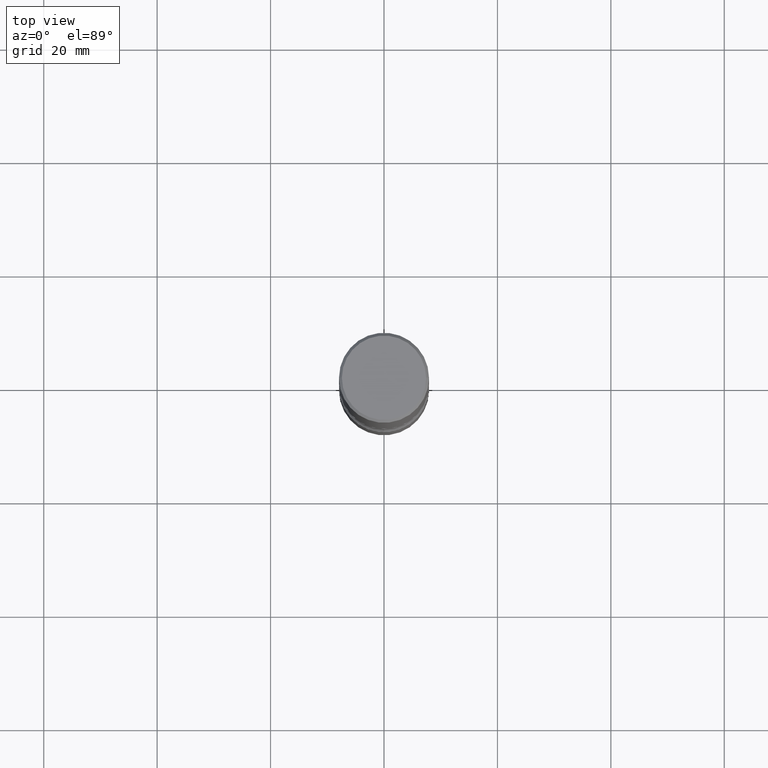
[diagram: clean part render]
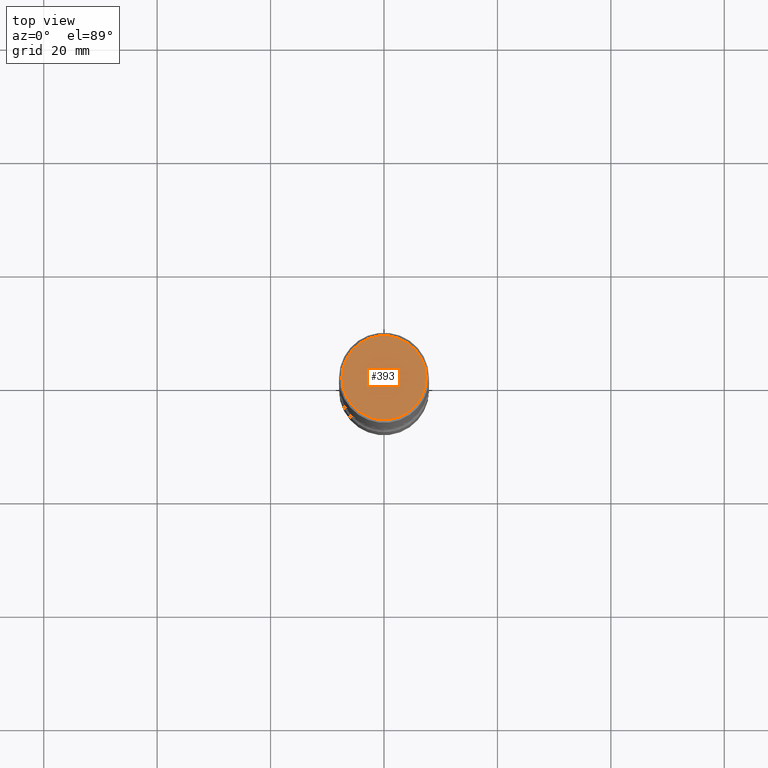
[diagram: same view with one face highlighted and labeled with its STEP entity id]
A machine part, top view. The second image highlights one B-rep face of the part: STEP entity #393.
In plain terms, the highlighted planar face has unit normal (0, -0, -1).
Its self-contained STEP definition (entity closure, byte-faithful):
#23 = AXIS2_PLACEMENT_3D ( 'NONE', #251, #100, #544 ) ;
#85 = EDGE_LOOP ( 'NONE', ( #131, #553 ) ) ;
#99 = DIRECTION ( 'NONE',  ( 2.438088387897960049E-29, -3.491481338843145188E-15, -1.000000000000000000 ) ) ;
#100 = DIRECTION ( 'NONE',  ( -2.445468806185136597E-29, 3.491481338843145583E-15, 1.000000000000000000 ) ) ;
#131 = ORIENTED_EDGE ( 'NONE', *, *, #133, .T. ) ;
#133 = EDGE_CURVE ( 'NONE', #461, #211, #403, .T. ) ;
#138 = DIRECTION ( 'NONE',  ( 1.000000000000000000, -6.982962677686266711E-15, 4.876067333457695642E-29 ) ) ;
#143 = CARTESIAN_POINT ( 'NONE',  ( 2.042516583223230173E-15, 0.2924999999999996492, -1.006318497896267537E-15 ) ) ;
#211 = VERTEX_POINT ( 'NONE', #338 ) ;
#217 = FACE_OUTER_BOUND ( 'NONE', #85, .T. ) ;
#251 = CARTESIAN_POINT ( 'NONE',  ( -7.306959900346538153E-46, 1.043240219266313067E-31, 2.987958743070287587E-17 ) ) ;
#261 = DIRECTION ( 'NONE',  ( -2.445468806185136597E-29, 3.491481338843145583E-15, 1.000000000000000000 ) ) ;
#264 = DIRECTION ( 'NONE',  ( -1.000000000000000000, 6.982962677686265922E-15, -4.876176775795935793E-29 ) ) ;
#322 = CARTESIAN_POINT ( 'NONE',  ( -0.2924999999999996492, 2.077431396611661822E-15, 2.987958743068847300E-17 ) ) ;
#338 = CARTESIAN_POINT ( 'NONE',  ( 0.2924999999999996492, -2.110215457714317564E-15, 2.987958743071740200E-17 ) ) ;
#372 = EDGE_CURVE ( 'NONE', #211, #461, #534, .T. ) ;
#393 = ADVANCED_FACE ( 'NONE', ( #217 ), #399, .F. ) ;
#399 = PLANE ( 'NONE',  #499 ) ;
#403 = CIRCLE ( 'NONE', #23, 0.2924999999999996492 ) ;
#461 = VERTEX_POINT ( 'NONE', #322 ) ;
#499 = AXIS2_PLACEMENT_3D ( 'NONE', #143, #99, #264 ) ;
#502 = AXIS2_PLACEMENT_3D ( 'NONE', #528, #261, #138 ) ;
#528 = CARTESIAN_POINT ( 'NONE',  ( -7.306959900346538153E-46, 1.043240219266313067E-31, 2.987958743070287587E-17 ) ) ;
#534 = CIRCLE ( 'NONE', #502, 0.2924999999999996492 ) ;
#544 = DIRECTION ( 'NONE',  ( 1.000000000000000000, -6.982962677686266711E-15, 4.876067333457695642E-29 ) ) ;
#553 = ORIENTED_EDGE ( 'NONE', *, *, #372, .T. ) ;